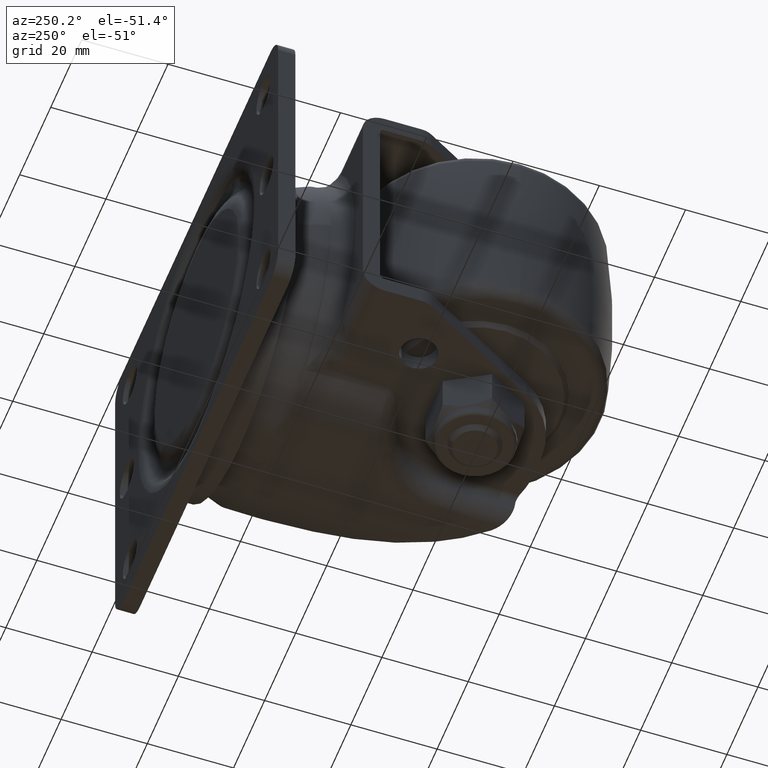
[diagram: clean part render]
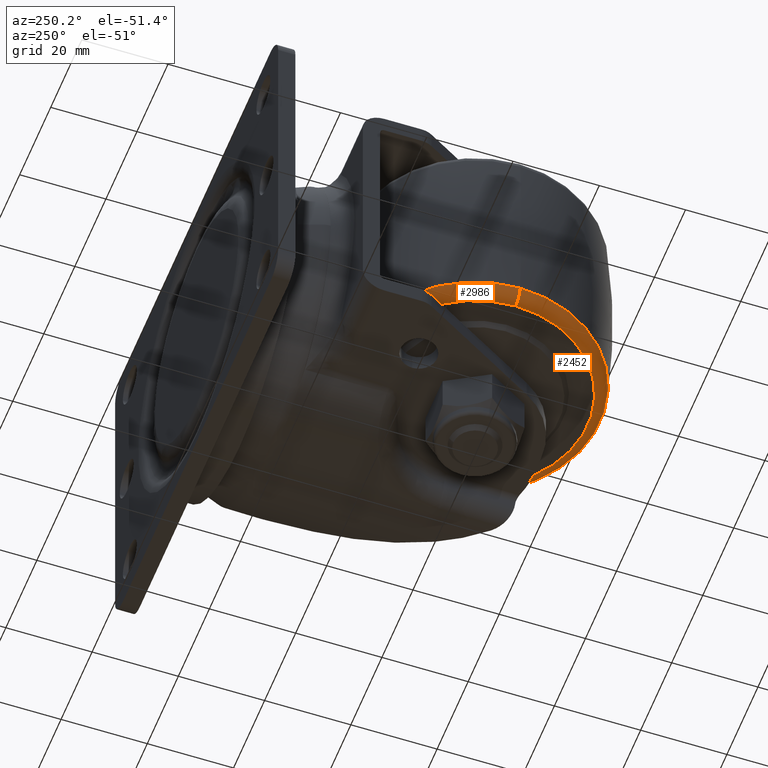
[diagram: same view with one multi-face feature highlighted, each face labeled with its STEP entity id]
A machine part, auxiliary view. The highlighted faces form ONE feature: a constant-radius fillet chain: 2 tangent blend faces with common blend radius 3 mm. The faces share edges in the B-rep.
Their STEP definitions:
[1] entity #2986 (Torus):
#13 = CARTESIAN_POINT ( 'NONE',  ( 26.10566836218949760, 3.197022319935769769E-15, -21.00000000000000000 ) ) ;
#67 = DIRECTION ( 'NONE',  ( 1.000000000000000000, 0.000000000000000000, 0.000000000000000000 ) ) ;
#76 = CARTESIAN_POINT ( 'NONE',  ( -26.10566836218949760, 0.000000000000000000, -24.00000000000000000 ) ) ;
#163 = DIRECTION ( 'NONE',  ( 0.000000000000000000, 0.000000000000000000, 1.000000000000000000 ) ) ;
#595 = VERTEX_POINT ( 'NONE', #76 ) ;
#887 = EDGE_CURVE ( 'NONE', #2490, #5345, #3988, .T. ) ;
#953 = CARTESIAN_POINT ( 'NONE',  ( -26.10566836218949760, 0.000000000000000000, -21.00000000000000000 ) ) ;
#965 = AXIS2_PLACEMENT_3D ( 'NONE', #13, #2513, #1518 ) ;
#1247 = ORIENTED_EDGE ( 'NONE', *, *, #887, .F. ) ;
#1518 = DIRECTION ( 'NONE',  ( -1.000000000000000000, -1.224646799147353454E-16, 0.000000000000000000 ) ) ;
#1644 = AXIS2_PLACEMENT_3D ( 'NONE', #3081, #163, #67 ) ;
#1674 = EDGE_CURVE ( 'NONE', #2490, #3461, #3196, .T. ) ;
#1929 = AXIS2_PLACEMENT_3D ( 'NONE', #953, #2982, #4998 ) ;
#2022 = DIRECTION ( 'NONE',  ( -1.000000000000000000, 0.000000000000000000, 0.000000000000000000 ) ) ;
#2115 = ORIENTED_EDGE ( 'NONE', *, *, #1674, .T. ) ;
#2490 = VERTEX_POINT ( 'NONE', #3921 ) ;
#2513 = DIRECTION ( 'NONE',  ( -1.224646799147353207E-16, 1.000000000000000000, 0.000000000000000000 ) ) ;
#2650 = CARTESIAN_POINT ( 'NONE',  ( -29.09480603460475834, 0.000000000000000000, -21.25506072874494023 ) ) ;
#2736 = DIRECTION ( 'NONE',  ( -0.000000000000000000, -0.000000000000000000, -1.000000000000000000 ) ) ;
#2767 = AXIS2_PLACEMENT_3D ( 'NONE', #6174, #6045, #2022 ) ;
#2896 = TOROIDAL_SURFACE ( 'NONE', #2767, 26.10566836218949760, 3.000000000000000000 ) ;
#2982 = DIRECTION ( 'NONE',  ( 0.000000000000000000, -1.000000000000000000, 0.000000000000000000 ) ) ;
#2986 = ADVANCED_FACE ( 'NONE', ( #3051 ), #2896, .T. ) ;
#3005 = AXIS2_PLACEMENT_3D ( 'NONE', #3076, #2736, #3302 ) ;
#3051 = FACE_OUTER_BOUND ( 'NONE', #5048, .T. ) ;
#3076 = CARTESIAN_POINT ( 'NONE',  ( 0.000000000000000000, 0.000000000000000000, -24.00000000000000000 ) ) ;
#3081 = CARTESIAN_POINT ( 'NONE',  ( 0.000000000000000000, 0.000000000000000000, -21.25506072874494023 ) ) ;
#3110 = CIRCLE ( 'NONE', #3005, 26.10566836218949760 ) ;
#3196 = CIRCLE ( 'NONE', #965, 2.999999999999999112 ) ;
#3302 = DIRECTION ( 'NONE',  ( -1.000000000000000000, 0.000000000000000000, 0.000000000000000000 ) ) ;
#3356 = EDGE_CURVE ( 'NONE', #5345, #595, #4050, .T. ) ;
#3461 = VERTEX_POINT ( 'NONE', #4263 ) ;
#3921 = CARTESIAN_POINT ( 'NONE',  ( 29.09480603460475834, 3.563086108209180818E-15, -21.25506072874494023 ) ) ;
#3988 = CIRCLE ( 'NONE', #1644, 29.09480603460475834 ) ;
#4050 = CIRCLE ( 'NONE', #1929, 2.999999999999999112 ) ;
#4143 = ORIENTED_EDGE ( 'NONE', *, *, #3356, .F. ) ;
#4263 = CARTESIAN_POINT ( 'NONE',  ( 26.10566836218949760, 3.380054214072475294E-15, -24.00000000000000000 ) ) ;
#4938 = ORIENTED_EDGE ( 'NONE', *, *, #5673, .F. ) ;
#4998 = DIRECTION ( 'NONE',  ( 0.000000000000000000, 0.000000000000000000, -1.000000000000000000 ) ) ;
#5048 = EDGE_LOOP ( 'NONE', ( #1247, #2115, #4938, #4143 ) ) ;
#5345 = VERTEX_POINT ( 'NONE', #2650 ) ;
#5673 = EDGE_CURVE ( 'NONE', #595, #3461, #3110, .T. ) ;
#6045 = DIRECTION ( 'NONE',  ( -0.000000000000000000, -0.000000000000000000, -1.000000000000000000 ) ) ;
#6174 = CARTESIAN_POINT ( 'NONE',  ( 0.000000000000000000, 0.000000000000000000, -21.00000000000000000 ) ) ;
[2] entity #2452 (Torus):
#13 = CARTESIAN_POINT ( 'NONE',  ( 26.10566836218949760, 3.197022319935769769E-15, -21.00000000000000000 ) ) ;
#76 = CARTESIAN_POINT ( 'NONE',  ( -26.10566836218949760, 0.000000000000000000, -24.00000000000000000 ) ) ;
#595 = VERTEX_POINT ( 'NONE', #76 ) ;
#810 = AXIS2_PLACEMENT_3D ( 'NONE', #6382, #2807, #5341 ) ;
#953 = CARTESIAN_POINT ( 'NONE',  ( -26.10566836218949760, 0.000000000000000000, -21.00000000000000000 ) ) ;
#965 = AXIS2_PLACEMENT_3D ( 'NONE', #13, #2513, #1518 ) ;
#1224 = EDGE_CURVE ( 'NONE', #5345, #2490, #2075, .T. ) ;
#1301 = DIRECTION ( 'NONE',  ( -0.000000000000000000, -0.000000000000000000, -1.000000000000000000 ) ) ;
#1518 = DIRECTION ( 'NONE',  ( -1.000000000000000000, -1.224646799147353454E-16, 0.000000000000000000 ) ) ;
#1628 = DIRECTION ( 'NONE',  ( -0.000000000000000000, -0.000000000000000000, -1.000000000000000000 ) ) ;
#1674 = EDGE_CURVE ( 'NONE', #2490, #3461, #3196, .T. ) ;
#1929 = AXIS2_PLACEMENT_3D ( 'NONE', #953, #2982, #4998 ) ;
#2075 = CIRCLE ( 'NONE', #810, 29.09480603460475834 ) ;
#2121 = CARTESIAN_POINT ( 'NONE',  ( 0.000000000000000000, 0.000000000000000000, -21.00000000000000000 ) ) ;
#2250 = AXIS2_PLACEMENT_3D ( 'NONE', #4922, #1301, #3411 ) ;
#2452 = ADVANCED_FACE ( 'NONE', ( #2625 ), #4577, .T. ) ;
#2490 = VERTEX_POINT ( 'NONE', #3921 ) ;
#2513 = DIRECTION ( 'NONE',  ( -1.224646799147353207E-16, 1.000000000000000000, 0.000000000000000000 ) ) ;
#2625 = FACE_OUTER_BOUND ( 'NONE', #2667, .T. ) ;
#2650 = CARTESIAN_POINT ( 'NONE',  ( -29.09480603460475834, 0.000000000000000000, -21.25506072874494023 ) ) ;
#2667 = EDGE_LOOP ( 'NONE', ( #3458, #4600, #3426, #4788 ) ) ;
#2780 = CIRCLE ( 'NONE', #2250, 26.10566836218949760 ) ;
#2807 = DIRECTION ( 'NONE',  ( 0.000000000000000000, 0.000000000000000000, 1.000000000000000000 ) ) ;
#2982 = DIRECTION ( 'NONE',  ( 0.000000000000000000, -1.000000000000000000, 0.000000000000000000 ) ) ;
#3196 = CIRCLE ( 'NONE', #965, 2.999999999999999112 ) ;
#3320 = AXIS2_PLACEMENT_3D ( 'NONE', #2121, #1628, #3655 ) ;
#3356 = EDGE_CURVE ( 'NONE', #5345, #595, #4050, .T. ) ;
#3411 = DIRECTION ( 'NONE',  ( -1.000000000000000000, 0.000000000000000000, 0.000000000000000000 ) ) ;
#3426 = ORIENTED_EDGE ( 'NONE', *, *, #3356, .T. ) ;
#3458 = ORIENTED_EDGE ( 'NONE', *, *, #1674, .F. ) ;
#3461 = VERTEX_POINT ( 'NONE', #4263 ) ;
#3655 = DIRECTION ( 'NONE',  ( -1.000000000000000000, 0.000000000000000000, 0.000000000000000000 ) ) ;
#3921 = CARTESIAN_POINT ( 'NONE',  ( 29.09480603460475834, 3.563086108209180818E-15, -21.25506072874494023 ) ) ;
#4050 = CIRCLE ( 'NONE', #1929, 2.999999999999999112 ) ;
#4263 = CARTESIAN_POINT ( 'NONE',  ( 26.10566836218949760, 3.380054214072475294E-15, -24.00000000000000000 ) ) ;
#4577 = TOROIDAL_SURFACE ( 'NONE', #3320, 26.10566836218949760, 3.000000000000000000 ) ;
#4600 = ORIENTED_EDGE ( 'NONE', *, *, #1224, .F. ) ;
#4751 = EDGE_CURVE ( 'NONE', #3461, #595, #2780, .T. ) ;
#4788 = ORIENTED_EDGE ( 'NONE', *, *, #4751, .F. ) ;
#4922 = CARTESIAN_POINT ( 'NONE',  ( 0.000000000000000000, 0.000000000000000000, -24.00000000000000000 ) ) ;
#4998 = DIRECTION ( 'NONE',  ( 0.000000000000000000, 0.000000000000000000, -1.000000000000000000 ) ) ;
#5341 = DIRECTION ( 'NONE',  ( 1.000000000000000000, 0.000000000000000000, 0.000000000000000000 ) ) ;
#5345 = VERTEX_POINT ( 'NONE', #2650 ) ;
#6382 = CARTESIAN_POINT ( 'NONE',  ( 0.000000000000000000, 0.000000000000000000, -21.25506072874494023 ) ) ;